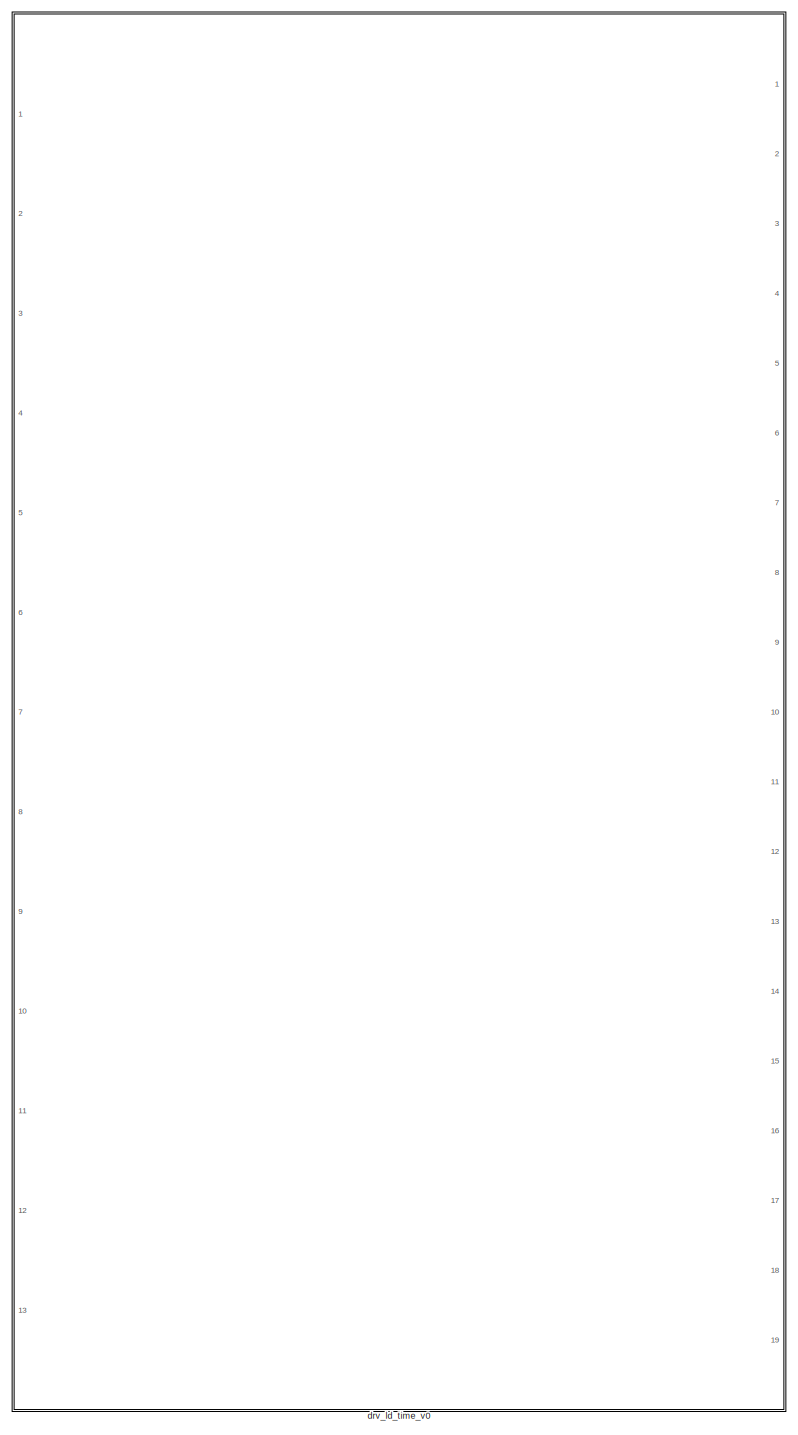
[diagram: root canvas - part 1/1, most of the canvas]
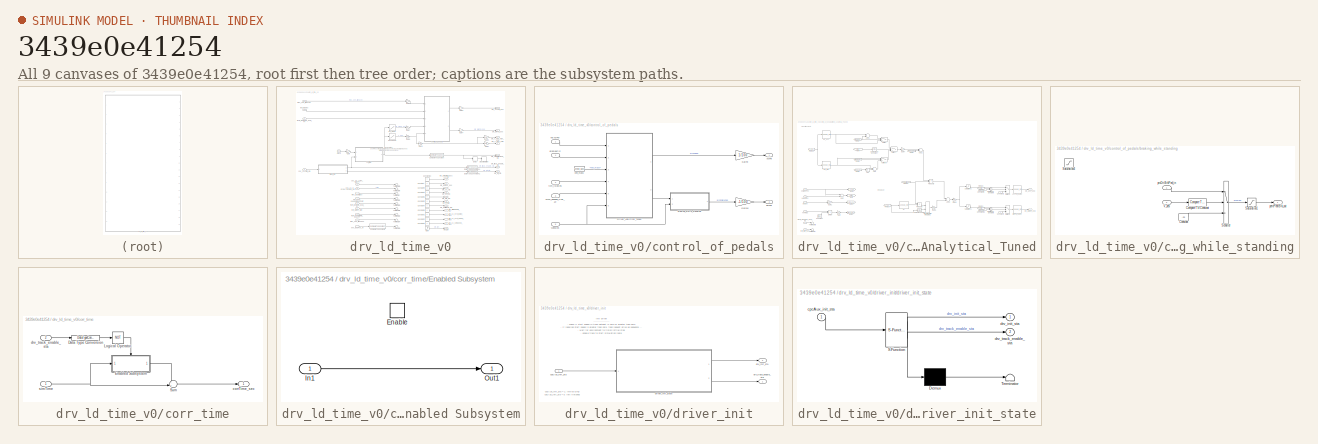
[diagram: thumbnail index - all 9 canvases of the model, root first then tree order]
MODEL slx_3439e0e41254
KIND library
CONFIG AbsTol = auto
CONFIG FixedStep = auto
CONFIG MaxStep = auto
CONFIG MinStep = auto
CONFIG RelTol = 1e-3
CONFIG SampleTimeConstraint = Unconstrained
CONFIG Solver = ode45
CONFIG SolverMode = Auto
CONFIG SolverName = ode45
CONFIG StartTime = 0.0
CONFIG StopTime = 10.0
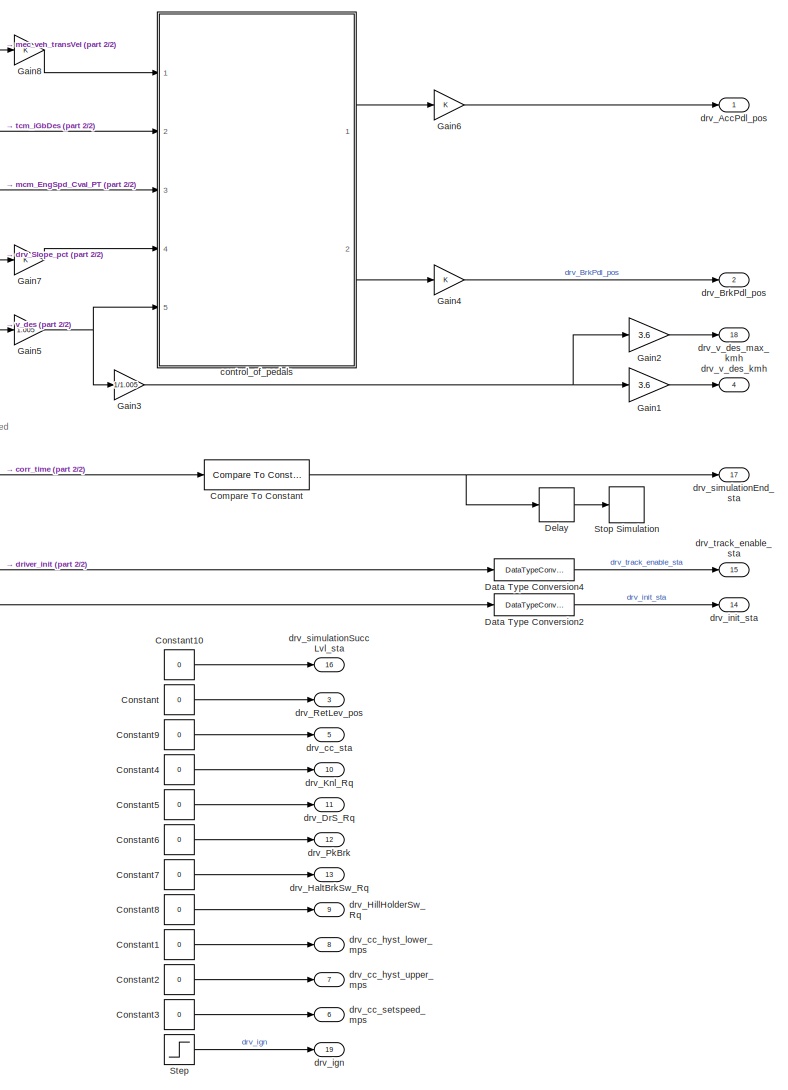
[diagram: drv_ld_time_v0 - part 1/2, right side, full height]
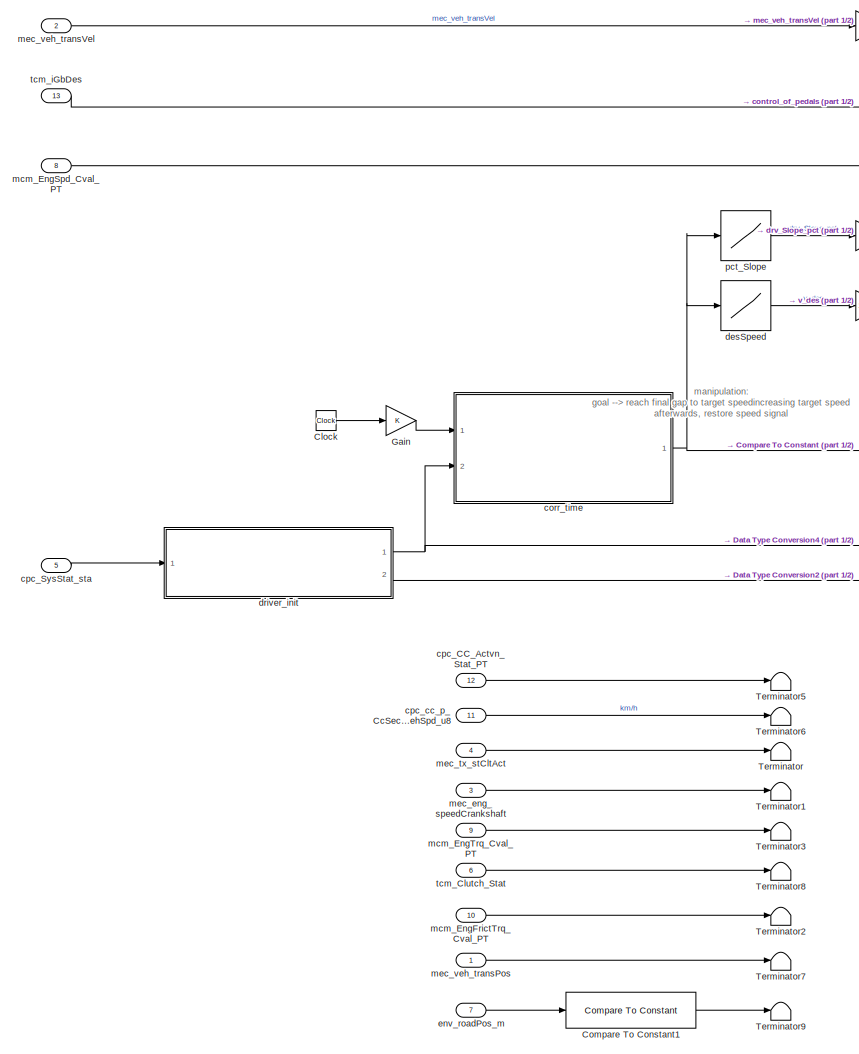
[diagram: drv_ld_time_v0 - part 2/2, left side, full height]
BLOCK [SubSystem] drv_ld_time_v0
  Ports = [13, 19]
  RequestExecContextInheritance = off
  TreatAsAtomicUnit = on
  Variant = off
BLOCK [Clock] drv_ld_time_v0/Clock
BLOCK [Reference] drv_ld_time_v0/Compare To Constant  REF=simulink/Logic and Bit
Operations/Compare
To Constant
  Ports = [1, 1]
  SourceBlock = simulink/Logic and Bit\nOperations/Compare\nTo Constant
  SourceType = Compare To Constant
BLOCK [Reference] drv_ld_time_v0/Compare To Constant1  REF=simulink/Logic and Bit
Operations/Compare
To Constant
  Ports = [1, 1]
  SourceBlock = simulink/Logic and Bit\nOperations/Compare\nTo Constant
  SourceType = Compare To Constant
BLOCK [Constant] drv_ld_time_v0/Constant
  Value = 0
BLOCK [Constant] drv_ld_time_v0/Constant1
  Value = 0
BLOCK [Constant] drv_ld_time_v0/Constant10
  Value = 0
BLOCK [Constant] drv_ld_time_v0/Constant2
  Value = 0
BLOCK [Constant] drv_ld_time_v0/Constant3
  Value = 0
BLOCK [Constant] drv_ld_time_v0/Constant4
  Value = 0
BLOCK [Constant] drv_ld_time_v0/Constant5
  Value = 0
BLOCK [Constant] drv_ld_time_v0/Constant6
  Value = 0
BLOCK [Constant] drv_ld_time_v0/Constant7
  Value = 0
BLOCK [Constant] drv_ld_time_v0/Constant8
  Value = 0
BLOCK [Constant] drv_ld_time_v0/Constant9
  Value = 0
BLOCK [DataTypeConversion] drv_ld_time_v0/Data Type Conversion2
  OutDataTypeStr = double
  RndMeth = Floor
  SaturateOnIntegerOverflow = off
BLOCK [DataTypeConversion] drv_ld_time_v0/Data Type Conversion4
  OutDataTypeStr = double
  RndMeth = Floor
  SaturateOnIntegerOverflow = off
BLOCK [Delay] drv_ld_time_v0/Delay
  DelayLength = sMP.human.drv.stopDelay
  InitialCondition = 0
  InputPortMap = u0
  Ports = [1, 1]
BLOCK [Gain] drv_ld_time_v0/Gain
  OutDataTypeStr = Inherit: Inherit via internal rule
  ParamDataTypeStr = Inherit: Inherit via internal rule
  SampleTime = K
  SaturateOnIntegerOverflow = off
BLOCK [Gain] drv_ld_time_v0/Gain1
  Gain = 3.6
  OutDataTypeStr = Inherit: Inherit via internal rule
  ParamDataTypeStr = Inherit: Inherit via internal rule
  SaturateOnIntegerOverflow = off
BLOCK [Gain] drv_ld_time_v0/Gain2
  Gain = 3.6
  OutDataTypeStr = Inherit: Inherit via internal rule
  ParamDataTypeStr = Inherit: Inherit via internal rule
  SaturateOnIntegerOverflow = off
BLOCK [Gain] drv_ld_time_v0/Gain3
  AttributesFormatString = %<Gain>
  Gain = 1/1.005
  OutDataTypeStr = Inherit: Inherit via internal rule
  ParamDataTypeStr = Inherit: Inherit via internal rule
  SaturateOnIntegerOverflow = off
BLOCK [Gain] drv_ld_time_v0/Gain4
  OutDataTypeStr = Inherit: Inherit via internal rule
  ParamDataTypeStr = Inherit: Inherit via internal rule
  SaturateOnIntegerOverflow = off
BLOCK [Gain] drv_ld_time_v0/Gain5
  AttributesFormatString = %<Gain>
  Gain = 1.005
  OutDataTypeStr = Inherit: Inherit via internal rule
  ParamDataTypeStr = Inherit: Inherit via internal rule
  SaturateOnIntegerOverflow = off
BLOCK [Gain] drv_ld_time_v0/Gain6
  OutDataTypeStr = Inherit: Inherit via internal rule
  ParamDataTypeStr = Inherit: Inherit via internal rule
  SaturateOnIntegerOverflow = off
BLOCK [Gain] drv_ld_time_v0/Gain7
  OutDataTypeStr = Inherit: Inherit via internal rule
  ParamDataTypeStr = Inherit: Inherit via internal rule
  SaturateOnIntegerOverflow = off
BLOCK [Gain] drv_ld_time_v0/Gain8
  OutDataTypeStr = Inherit: Inherit via internal rule
  ParamDataTypeStr = Inherit: Inherit via internal rule
  SaturateOnIntegerOverflow = off
BLOCK [Step] drv_ld_time_v0/Step
  AttributesFormatString = %<Before> >> %<After> after %<Time>s
  SampleTime = 0
  Time = 0.1
BLOCK [Stop] drv_ld_time_v0/Stop Simulation
BLOCK [Terminator] drv_ld_time_v0/Terminator
BLOCK [Terminator] drv_ld_time_v0/Terminator1
BLOCK [Terminator] drv_ld_time_v0/Terminator2
BLOCK [Terminator] drv_ld_time_v0/Terminator3
BLOCK [Terminator] drv_ld_time_v0/Terminator5
BLOCK [Terminator] drv_ld_time_v0/Terminator6
BLOCK [Terminator] drv_ld_time_v0/Terminator7
BLOCK [Terminator] drv_ld_time_v0/Terminator8
BLOCK [Terminator] drv_ld_time_v0/Terminator9
BLOCK [SubSystem] drv_ld_time_v0/control_of_pedals
  Ports = [5, 2]
  RequestExecContextInheritance = off
  Variant = off
BLOCK [Outport] drv_ld_time_v0/control_of_pedals/AccPdl
  IconDisplay = Port number
BLOCK [Outport] drv_ld_time_v0/control_of_pedals/BrkPdl
  IconDisplay = Port number
  Port = 2
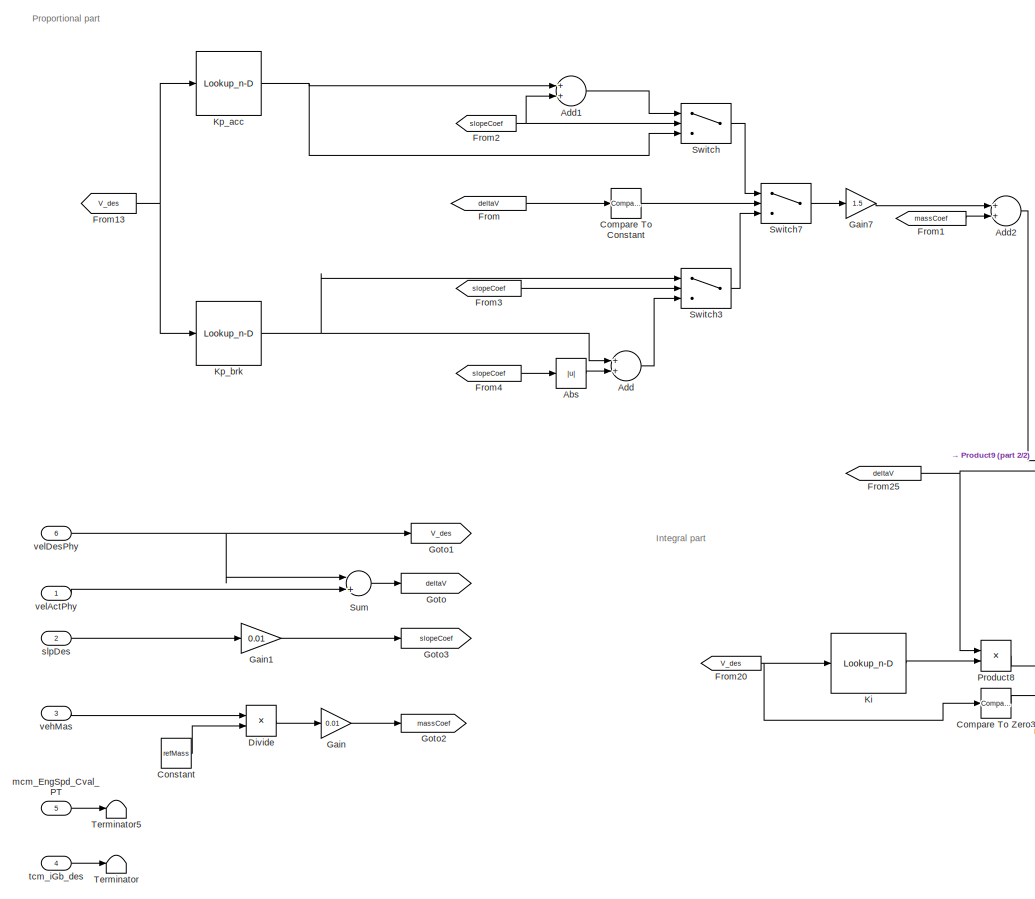
[diagram: drv_ld_time_v0/control_of_pedals/Driver_Analytical_Tuned - part 1/2, left side, full height]
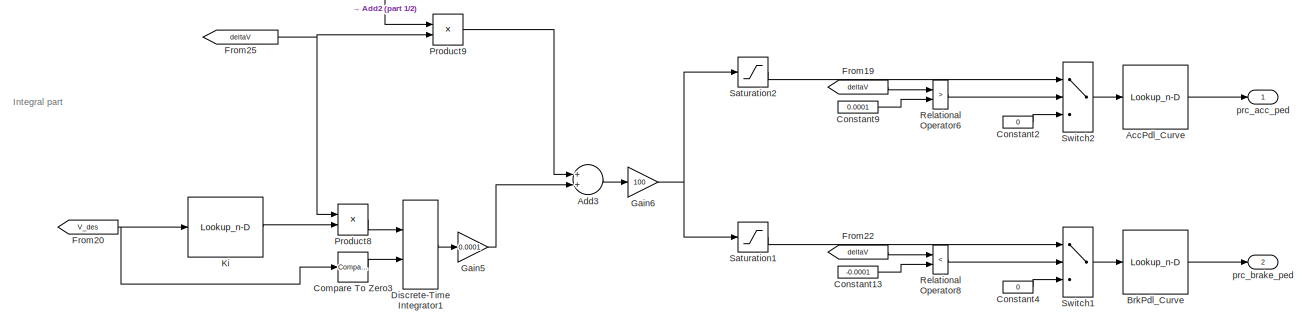
[diagram: drv_ld_time_v0/control_of_pedals/Driver_Analytical_Tuned - part 2/2, bottom center region]
BLOCK [SubSystem] drv_ld_time_v0/control_of_pedals/Driver_Analytical_Tuned
  Ports = [6, 2]
  RequestExecContextInheritance = off
  Variant = off
BLOCK [Abs] drv_ld_time_v0/control_of_pedals/Driver_Analytical_Tuned/Abs
  SaturateOnIntegerOverflow = off
BLOCK [Lookup_n-D] drv_ld_time_v0/control_of_pedals/Driver_Analytical_Tuned/AccPdl_Curve
  BreakpointsForDimension1 = vehPara_AccPdlCurve(:,1)
  InternalRulePriority = Speed
  NumberOfTableDimensions = 1
  Ports = [1, 1]
  RndMeth = Simplest
  Table = vehPara_AccPdlCurve(:,2)
BLOCK [Sum] drv_ld_time_v0/control_of_pedals/Driver_Analytical_Tuned/Add
  InputSameDT = off
  OutDataTypeStr = Inherit: Inherit via internal rule
  Ports = [2, 1]
  SaturateOnIntegerOverflow = off
BLOCK [Sum] drv_ld_time_v0/control_of_pedals/Driver_Analytical_Tuned/Add1
  InputSameDT = off
  OutDataTypeStr = Inherit: Inherit via internal rule
  Ports = [2, 1]
  SaturateOnIntegerOverflow = off
BLOCK [Sum] drv_ld_time_v0/control_of_pedals/Driver_Analytical_Tuned/Add2
  InputSameDT = off
  OutDataTypeStr = Inherit: Inherit via internal rule
  Ports = [2, 1]
  SaturateOnIntegerOverflow = off
BLOCK [Sum] drv_ld_time_v0/control_of_pedals/Driver_Analytical_Tuned/Add3
  InputSameDT = off
  OutDataTypeStr = Inherit: Inherit via internal rule
  Ports = [2, 1]
  SaturateOnIntegerOverflow = off
BLOCK [Lookup_n-D] drv_ld_time_v0/control_of_pedals/Driver_Analytical_Tuned/BrkPdl_Curve
  BreakpointsForDimension1 = vehPara_BrkPdlCurve(:,1)
  InternalRulePriority = Speed
  NumberOfTableDimensions = 1
  Ports = [1, 1]
  RndMeth = Simplest
  Table = vehPara_BrkPdlCurve(:,2)
BLOCK [Reference] drv_ld_time_v0/control_of_pedals/Driver_Analytical_Tuned/Compare To Constant  REF=simulink/Logic and Bit
Operations/Compare
To Constant
  Ports = [1, 1]
  SourceBlock = simulink/Logic and Bit\nOperations/Compare\nTo Constant
  SourceType = Compare To Constant
BLOCK [Reference] drv_ld_time_v0/control_of_pedals/Driver_Analytical_Tuned/Compare To Zero3  REF=simulink/Logic and Bit
Operations/Compare
To Zero
  Ports = [1, 1]
  SourceBlock = simulink/Logic and Bit\nOperations/Compare\nTo Zero
  SourceType = Compare To Zero
BLOCK [Constant] drv_ld_time_v0/control_of_pedals/Driver_Analytical_Tuned/Constant
  AttributesFormatString = %<Value>
  Value = refMass
BLOCK [Constant] drv_ld_time_v0/control_of_pedals/Driver_Analytical_Tuned/Constant13
  Value = -0.0001
BLOCK [Constant] drv_ld_time_v0/control_of_pedals/Driver_Analytical_Tuned/Constant2
  Value = 0
BLOCK [Constant] drv_ld_time_v0/control_of_pedals/Driver_Analytical_Tuned/Constant4
  Value = 0
BLOCK [Constant] drv_ld_time_v0/control_of_pedals/Driver_Analytical_Tuned/Constant9
  Value = 0.0001
BLOCK [DiscreteIntegrator] drv_ld_time_v0/control_of_pedals/Driver_Analytical_Tuned/Discrete-Time Integrator1
  ExternalReset = level
  ICPrevOutput = DiscIntNeverNeededParam
  ICPrevScaledInput = DiscIntNeverNeededParam
  LimitOutput = on
  LowerSaturationLimit = -7500
  Ports = [2, 1]
  SampleTime = -1
  UpperSaturationLimit = 7500
BLOCK [Product] drv_ld_time_v0/control_of_pedals/Driver_Analytical_Tuned/Divide
  InputSameDT = off
  Inputs = */
  OutDataTypeStr = Inherit: Inherit via internal rule
  Ports = [2, 1]
  RndMeth = Floor
  SaturateOnIntegerOverflow = off
BLOCK [From] drv_ld_time_v0/control_of_pedals/Driver_Analytical_Tuned/From
  GotoTag = deltaV
BLOCK [From] drv_ld_time_v0/control_of_pedals/Driver_Analytical_Tuned/From1
  GotoTag = massCoef
BLOCK [From] drv_ld_time_v0/control_of_pedals/Driver_Analytical_Tuned/From13
  GotoTag = V_des
BLOCK [From] drv_ld_time_v0/control_of_pedals/Driver_Analytical_Tuned/From19
  GotoTag = deltaV
BLOCK [From] drv_ld_time_v0/control_of_pedals/Driver_Analytical_Tuned/From2
  GotoTag = slopeCoef
BLOCK [From] drv_ld_time_v0/control_of_pedals/Driver_Analytical_Tuned/From20
  GotoTag = V_des
BLOCK [From] drv_ld_time_v0/control_of_pedals/Driver_Analytical_Tuned/From22
  GotoTag = deltaV
BLOCK [From] drv_ld_time_v0/control_of_pedals/Driver_Analytical_Tuned/From25
  GotoTag = deltaV
BLOCK [From] drv_ld_time_v0/control_of_pedals/Driver_Analytical_Tuned/From3
  GotoTag = slopeCoef
BLOCK [From] drv_ld_time_v0/control_of_pedals/Driver_Analytical_Tuned/From4
  GotoTag = slopeCoef
BLOCK [Gain] drv_ld_time_v0/control_of_pedals/Driver_Analytical_Tuned/Gain
  AttributesFormatString = %<Gain>
  Gain = 0.01
  OutDataTypeStr = Inherit: Inherit via internal rule
  ParamDataTypeStr = Inherit: Inherit via internal rule
  SaturateOnIntegerOverflow = off
BLOCK [Gain] drv_ld_time_v0/control_of_pedals/Driver_Analytical_Tuned/Gain1
  Gain = 0.01
  OutDataTypeStr = Inherit: Inherit via internal rule
  ParamDataTypeStr = Inherit: Inherit via internal rule
  SaturateOnIntegerOverflow = off
BLOCK [Gain] drv_ld_time_v0/control_of_pedals/Driver_Analytical_Tuned/Gain5
  AttributesFormatString = %<Gain>
  Gain = 0.0001
  OutDataTypeStr = Inherit: Inherit via internal rule
  ParamDataTypeStr = Inherit: Inherit via internal rule
  SaturateOnIntegerOverflow = off
BLOCK [Gain] drv_ld_time_v0/control_of_pedals/Driver_Analytical_Tuned/Gain6
  Gain = 100
  OutDataTypeStr = Inherit: Inherit via internal rule
  ParamDataTypeStr = Inherit: Inherit via internal rule
  SaturateOnIntegerOverflow = off
BLOCK [Gain] drv_ld_time_v0/control_of_pedals/Driver_Analytical_Tuned/Gain7
  AttributesFormatString = %<Gain>
  Gain = 1.5
  OutDataTypeStr = Inherit: Inherit via internal rule
  ParamDataTypeStr = Inherit: Inherit via internal rule
  SaturateOnIntegerOverflow = off
BLOCK [Goto] drv_ld_time_v0/control_of_pedals/Driver_Analytical_Tuned/Goto
  GotoTag = deltaV
BLOCK [Goto] drv_ld_time_v0/control_of_pedals/Driver_Analytical_Tuned/Goto1
  GotoTag = V_des
BLOCK [Goto] drv_ld_time_v0/control_of_pedals/Driver_Analytical_Tuned/Goto2
  GotoTag = massCoef
BLOCK [Goto] drv_ld_time_v0/control_of_pedals/Driver_Analytical_Tuned/Goto3
  GotoTag = slopeCoef
BLOCK [Lookup_n-D] drv_ld_time_v0/control_of_pedals/Driver_Analytical_Tuned/Ki
  BreakpointsForDimension1 = [0,10,20,30,40,50,60,70,80]
  BreakpointsForDimension2 = Veh_Speed_Breaking
  NumberOfTableDimensions = 1
  Ports = [1, 1]
  RndMeth = Simplest
  Table = [0.01,0.015,0.02,0.0225,0.03,0.035,0.04,0.045,0.05]
BLOCK [Lookup_n-D] drv_ld_time_v0/control_of_pedals/Driver_Analytical_Tuned/Kp_acc
  BreakpointsForDimension1 = Kp_acc(2,:)
  BreakpointsForDimension2 = Veh_Speed_Breaking
  NumberOfTableDimensions = 1
  Ports = [1, 1]
  RndMeth = Simplest
  Table = Kp_acc(1,:)
BLOCK [Lookup_n-D] drv_ld_time_v0/control_of_pedals/Driver_Analytical_Tuned/Kp_brk
  BreakpointsForDimension1 = [0,10,20,30,40,50,60,70,80,90,100]
  BreakpointsForDimension2 = Veh_Speed_Breaking
  NumberOfTableDimensions = 1
  Ports = [1, 1]
  RndMeth = Simplest
  Table = [1,1.25,1.25,1.5,1.5,1.5,1.7,1.8,1.8,1.8,2]*0.1
BLOCK [Product] drv_ld_time_v0/control_of_pedals/Driver_Analytical_Tuned/Product8
  InputSameDT = off
  OutDataTypeStr = Inherit: Inherit via internal rule
  Ports = [2, 1]
  RndMeth = Floor
  SaturateOnIntegerOverflow = off
BLOCK [Product] drv_ld_time_v0/control_of_pedals/Driver_Analytical_Tuned/Product9
  InputSameDT = off
  OutDataTypeStr = Inherit: Inherit via internal rule
  Ports = [2, 1]
  RndMeth = Floor
  SaturateOnIntegerOverflow = off
BLOCK [RelationalOperator] drv_ld_time_v0/control_of_pedals/Driver_Analytical_Tuned/Relational Operator6
  InputSameDT = off
  Operator = >
  OutDataTypeStr = uint(8)
  Ports = [2, 1]
BLOCK [RelationalOperator] drv_ld_time_v0/control_of_pedals/Driver_Analytical_Tuned/Relational Operator8
  InputSameDT = off
  Operator = <
  OutDataTypeStr = uint(8)
  Ports = [2, 1]
BLOCK [Saturate] drv_ld_time_v0/control_of_pedals/Driver_Analytical_Tuned/Saturation1
  AttributesFormatString = %<UpperLimit>\n%<LowerLimit>
  InputPortMap = u0
  LowerLimit = -100
  Ports = [1, 1]
  UpperLimit = 0
BLOCK [Saturate] drv_ld_time_v0/control_of_pedals/Driver_Analytical_Tuned/Saturation2
  AttributesFormatString = %<UpperLimit>\n%<LowerLimit>
  InputPortMap = u0
  LowerLimit = 0
  Ports = [1, 1]
  UpperLimit = 100
BLOCK [Sum] drv_ld_time_v0/control_of_pedals/Driver_Analytical_Tuned/Sum
  InputSameDT = off
  Inputs = |+-
  OutDataTypeStr = Inherit: Inherit via internal rule
  Ports = [2, 1]
  SaturateOnIntegerOverflow = off
BLOCK [Switch] drv_ld_time_v0/control_of_pedals/Driver_Analytical_Tuned/Switch
  Criteria = u2 > Threshold
  InputSameDT = off
  SaturateOnIntegerOverflow = off
BLOCK [Switch] drv_ld_time_v0/control_of_pedals/Driver_Analytical_Tuned/Switch1
  InputSameDT = off
  SaturateOnIntegerOverflow = off
  Threshold = 0.5
BLOCK [Switch] drv_ld_time_v0/control_of_pedals/Driver_Analytical_Tuned/Switch2
  InputSameDT = off
  SaturateOnIntegerOverflow = off
  Threshold = 0.5
BLOCK [Switch] drv_ld_time_v0/control_of_pedals/Driver_Analytical_Tuned/Switch3
  Criteria = u2 > Threshold
  InputSameDT = off
  SaturateOnIntegerOverflow = off
BLOCK [Switch] drv_ld_time_v0/control_of_pedals/Driver_Analytical_Tuned/Switch7
  InputSameDT = off
  SaturateOnIntegerOverflow = off
BLOCK [Terminator] drv_ld_time_v0/control_of_pedals/Driver_Analytical_Tuned/Terminator
BLOCK [Terminator] drv_ld_time_v0/control_of_pedals/Driver_Analytical_Tuned/Terminator5
BLOCK [Inport] drv_ld_time_v0/control_of_pedals/Driver_Analytical_Tuned/mcm_EngSpd_Cval_PT
  IconDisplay = Port number
  Port = 5
BLOCK [Outport] drv_ld_time_v0/control_of_pedals/Driver_Analytical_Tuned/prc_acc_ped
  IconDisplay = Port number
BLOCK [Outport] drv_ld_time_v0/control_of_pedals/Driver_Analytical_Tuned/prc_brake_ped
  IconDisplay = Port number
  Port = 2
BLOCK [Inport] drv_ld_time_v0/control_of_pedals/Driver_Analytical_Tuned/slpDes
  IconDisplay = Port number
  Port = 2
BLOCK [Inport] drv_ld_time_v0/control_of_pedals/Driver_Analytical_Tuned/tcm_iGb_des
  IconDisplay = Port number
  Port = 4
BLOCK [Inport] drv_ld_time_v0/control_of_pedals/Driver_Analytical_Tuned/vehMas
  IconDisplay = Port number
  Port = 3
BLOCK [Inport] drv_ld_time_v0/control_of_pedals/Driver_Analytical_Tuned/velActPhy
  IconDisplay = Port number
BLOCK [Inport] drv_ld_time_v0/control_of_pedals/Driver_Analytical_Tuned/velDesPhy
  IconDisplay = Port number
  Port = 6
BLOCK [Gain] drv_ld_time_v0/control_of_pedals/Gain10
  Gain = -1/100
  OutDataTypeStr = Inherit: Inherit via internal rule
  ParamDataTypeStr = Inherit: Inherit via internal rule
  SaturateOnIntegerOverflow = off
BLOCK [Gain] drv_ld_time_v0/control_of_pedals/Gain9
  Gain = 1/100
  OutDataTypeStr = Inherit: Inherit via internal rule
  ParamDataTypeStr = Inherit: Inherit via internal rule
  SaturateOnIntegerOverflow = off
BLOCK [SubSystem] drv_ld_time_v0/control_of_pedals/braking_while_standing
  Ports = [2, 1]
  RequestExecContextInheritance = off
  ShowPortLabels = FromPortBlockName
  Variant = off
BLOCK [Reference] drv_ld_time_v0/control_of_pedals/braking_while_standing/Compare To Constant  REF=simulink/Logic and Bit
Operations/Compare
To Constant
  Ports = [1, 1]
  SourceBlock = simulink/Logic and Bit\nOperations/Compare\nTo Constant
  SourceType = Compare To Constant
BLOCK [Constant] drv_ld_time_v0/control_of_pedals/braking_while_standing/Constant
  AttributesFormatString = %<Value>
  Value = -25
BLOCK [Saturate] drv_ld_time_v0/control_of_pedals/braking_while_standing/Saturation1
  AttributesFormatString = %<UpperLimit>\n%<LowerLimit>
  InputPortMap = u0
  LowerLimit = -100
  Ports = [1, 1]
  UpperLimit = 0
BLOCK [Saturate] drv_ld_time_v0/control_of_pedals/braking_while_standing/Saturation3
  AttributesFormatString = %<UpperLimit>\n%<LowerLimit>
  InputPortMap = u0
  LowerLimit = -100
  Ports = [1, 1]
  UpperLimit = 0
BLOCK [Switch] drv_ld_time_v0/control_of_pedals/braking_while_standing/Schalter
  AttributesFormatString = %<Criteria>(%<Threshold>)
  InputSameDT = off
  Threshold = 0.5
BLOCK [Inport] drv_ld_time_v0/control_of_pedals/braking_while_standing/V_des
  IconDisplay = Port number
  Port = 2
BLOCK [Outport] drv_ld_time_v0/control_of_pedals/braking_while_standing/percPedlBrk_out
  AttributesFormatString = %<Description>
  Description = [%]
  IconDisplay = Port number
BLOCK [Inport] drv_ld_time_v0/control_of_pedals/braking_while_standing/prcDriBrkPed_in
  IconDisplay = Port number
BLOCK [Inport] drv_ld_time_v0/control_of_pedals/grdSlopCyc
  IconDisplay = Port number
  Port = 4
BLOCK [Inport] drv_ld_time_v0/control_of_pedals/mcm_EngSpd_Cval_PT
  IconDisplay = Port number
  Port = 3
BLOCK [Inport] drv_ld_time_v0/control_of_pedals/tcm_iGbDes
  IconDisplay = Port number
  Port = 2
BLOCK [Inport] drv_ld_time_v0/control_of_pedals/vVesDes
  IconDisplay = Port number
  Port = 5
BLOCK [Constant] drv_ld_time_v0/control_of_pedals/veh_mass
  Value = Vehicle_Mass
BLOCK [Inport] drv_ld_time_v0/control_of_pedals/velActPhy
  IconDisplay = Port number
BLOCK [SubSystem] drv_ld_time_v0/corr_time
  Ports = [2, 1]
  RequestExecContextInheritance = off
  Variant = off
BLOCK [DataTypeConversion] drv_ld_time_v0/corr_time/Data Type Conversion
  OutDataTypeStr = boolean
  RndMeth = Floor
  SaturateOnIntegerOverflow = off
BLOCK [SubSystem] drv_ld_time_v0/corr_time/Enabled Subsystem
  Ports = [1, 1, 1]
  RequestExecContextInheritance = off
  TreatAsAtomicUnit = on
  Variant = off
BLOCK [EnablePort] drv_ld_time_v0/corr_time/Enabled Subsystem/Enable
  Ports = []
BLOCK [Inport] drv_ld_time_v0/corr_time/Enabled Subsystem/In1
  IconDisplay = Port number
BLOCK [Outport] drv_ld_time_v0/corr_time/Enabled Subsystem/Out1
  IconDisplay = Port number
BLOCK [Logic] drv_ld_time_v0/corr_time/Logical Operator
  AllPortsSameDT = off
  Operator = NOT
  OutDataTypeStr = boolean
  Ports = [1, 1]
BLOCK [Sum] drv_ld_time_v0/corr_time/Sum
  IconShape = round
  InputSameDT = off
  Inputs = -+|
  OutDataTypeStr = Inherit: Inherit via internal rule
  Ports = [2, 1]
  SaturateOnIntegerOverflow = off
BLOCK [Outport] drv_ld_time_v0/corr_time/corrTime_sec
  IconDisplay = Port number
BLOCK [Inport] drv_ld_time_v0/corr_time/drv_track_enable_sta
  IconDisplay = Port number
  Port = 2
BLOCK [Inport] drv_ld_time_v0/corr_time/simTime
  IconDisplay = Port number
BLOCK [Inport] drv_ld_time_v0/cpc_CC_Actvn_Stat_PT
  IconDisplay = Port number
  Port = 12
BLOCK [Inport] drv_ld_time_v0/cpc_SysStat_sta
  IconDisplay = Port number
  Port = 5
BLOCK [Inport] drv_ld_time_v0/cpc_cc_p_CcSecure_LowSwitchOnVehSpd_u8
  IconDisplay = Port number
  Port = 11
BLOCK [Lookup] drv_ld_time_v0/desSpeed
  InputValues = CYC.t
  SaturateOnIntegerOverflow = off
  Table = CYC.v
BLOCK [SubSystem] drv_ld_time_v0/driver_init
  Ports = [1, 2]
  RequestExecContextInheritance = off
  Variant = off
BLOCK [Inport] drv_ld_time_v0/driver_init/cpcAux_init_sta
  IconDisplay = Port number
BLOCK [SubSystem] drv_ld_time_v0/driver_init/driver_init_state
  ErrorFcn = Stateflow.Translate.translate
  PermitHierarchicalResolution = ExplicitOnly
  Ports = [1, 2]
  RequestExecContextInheritance = off
  SFBlockType = Chart
  TreatAsAtomicUnit = on
  Variant = off
BLOCK [Demux] drv_ld_time_v0/driver_init/driver_init_state/ Demux 
  Outputs = 1
  Ports = [1, 1]
BLOCK [S-Function] drv_ld_time_v0/driver_init/driver_init_state/ SFunction 
  EnableBusSupport = off
  FunctionName = sf_sfun
  PortCounts = [1 3]
  Ports = [1, 3]
  SFunctionDeploymentMode = off
  Tag = Stateflow S-Function drv_ld_time_v0 1
BLOCK [Terminator] drv_ld_time_v0/driver_init/driver_init_state/ Terminator 
BLOCK [Inport] drv_ld_time_v0/driver_init/driver_init_state/cpcAux_init_sta
  IconDisplay = Port number
BLOCK [Outport] drv_ld_time_v0/driver_init/driver_init_state/drv_init_sta
  IconDisplay = Port number
BLOCK [Outport] drv_ld_time_v0/driver_init/driver_init_state/drv_track_enable_sta
  IconDisplay = Port number
  Port = 2
BLOCK [Outport] drv_ld_time_v0/driver_init/drv_init_sta
  IconDisplay = Port number
  Port = 2
BLOCK [Outport] drv_ld_time_v0/driver_init/drv_track_enable_sta
  IconDisplay = Port number
BLOCK [Outport] drv_ld_time_v0/drv_AccPdl_pos
  IconDisplay = Port number
BLOCK [Outport] drv_ld_time_v0/drv_BrkPdl_pos
  IconDisplay = Port number
  Port = 2
BLOCK [Outport] drv_ld_time_v0/drv_DrS_Rq
  IconDisplay = Port number
  Port = 11
BLOCK [Outport] drv_ld_time_v0/drv_HaltBrkSw_Rq
  IconDisplay = Port number
  Port = 13
BLOCK [Outport] drv_ld_time_v0/drv_HillHolderSw_Rq
  IconDisplay = Port number
  Port = 9
BLOCK [Outport] drv_ld_time_v0/drv_Knl_Rq
  IconDisplay = Port number
  Port = 10
BLOCK [Outport] drv_ld_time_v0/drv_PkBrk
  IconDisplay = Port number
  Port = 12
BLOCK [Outport] drv_ld_time_v0/drv_RetLev_pos
  IconDisplay = Port number
  Port = 3
BLOCK [Outport] drv_ld_time_v0/drv_cc_hyst_lower_mps
  IconDisplay = Port number
  Port = 8
BLOCK [Outport] drv_ld_time_v0/drv_cc_hyst_upper_mps
  IconDisplay = Port number
  Port = 7
BLOCK [Outport] drv_ld_time_v0/drv_cc_setspeed_mps
  IconDisplay = Port number
  Port = 6
BLOCK [Outport] drv_ld_time_v0/drv_cc_sta
  IconDisplay = Port number
  Port = 5
BLOCK [Outport] drv_ld_time_v0/drv_ign
  IconDisplay = Port number
  Port = 19
BLOCK [Outport] drv_ld_time_v0/drv_init_sta
  IconDisplay = Port number
  Port = 14
BLOCK [Outport] drv_ld_time_v0/drv_simulationEnd_sta
  IconDisplay = Port number
  Port = 17
BLOCK [Outport] drv_ld_time_v0/drv_simulationSuccLvl_sta
  IconDisplay = Port number
  Port = 16
BLOCK [Outport] drv_ld_time_v0/drv_track_enable_sta
  IconDisplay = Port number
  Port = 15
BLOCK [Outport] drv_ld_time_v0/drv_v_des_kmh
  IconDisplay = Port number
  Port = 4
BLOCK [Outport] drv_ld_time_v0/drv_v_des_max_kmh
  IconDisplay = Port number
  Port = 18
BLOCK [Inport] drv_ld_time_v0/env_roadPos_m
  IconDisplay = Port number
  Port = 7
BLOCK [Inport] drv_ld_time_v0/mcm_EngFrictTrq_Cval_PT
  IconDisplay = Port number
  Port = 10
BLOCK [Inport] drv_ld_time_v0/mcm_EngSpd_Cval_PT
  IconDisplay = Port number
  Port = 8
BLOCK [Inport] drv_ld_time_v0/mcm_EngTrq_Cval_PT
  IconDisplay = Port number
  Port = 9
BLOCK [Inport] drv_ld_time_v0/mec_eng_speedCrankshaft
  IconDisplay = Port number
  Port = 3
BLOCK [Inport] drv_ld_time_v0/mec_tx_stCltAct
  IconDisplay = Port number
  Port = 4
BLOCK [Inport] drv_ld_time_v0/mec_veh_transPos
  IconDisplay = Port number
BLOCK [Inport] drv_ld_time_v0/mec_veh_transVel
  IconDisplay = Port number
  Port = 2
BLOCK [Lookup] drv_ld_time_v0/pct_Slope
  InputValues = CYC.t
  SaturateOnIntegerOverflow = off
  Table = CYC.grade
BLOCK [Inport] drv_ld_time_v0/tcm_Clutch_Stat
  IconDisplay = Port number
  Port = 6
BLOCK [Inport] drv_ld_time_v0/tcm_iGbDes
  IconDisplay = Port number
  Port = 13
ANNOTATION drv_ld_time_v0: manipulation: goal --> reach final gap to target speedincreasing target speed afterwards, restore speed signal
ANNOTATION drv_ld_time_v0/control_of_pedals/Driver_Analytical_Tuned: Integral part
ANNOTATION drv_ld_time_v0/control_of_pedals/Driver_Analytical_Tuned: Proportional part
ANNOTATION drv_ld_time_v0/driver_init: cpcAux_init_sta = 1: initializing cpcAux_init_sta = 0: init finished
ANNOTATION drv_ld_time_v0/driver_init: init driver ---------------- - check if start speed in track dataset is zero or greater than zero - if required start speed is greater than zero, then request drive up sequence from pedal manipulation - wait for environment to finish initializing - enable track to start simulation route
LINE drv_ld_time_v0/Clock:1 -> drv_ld_time_v0/Gain:1
LINE drv_ld_time_v0/Compare To Constant1:1 -> drv_ld_time_v0/Terminator9:1
NET drv_ld_time_v0/Compare To Constant:1 -> drv_ld_time_v0/Delay:1, drv_ld_time_v0/drv_simulationEnd_sta:1
LINE drv_ld_time_v0/Constant10:1 -> drv_ld_time_v0/drv_simulationSuccLvl_sta:1
LINE drv_ld_time_v0/Constant1:1 -> drv_ld_time_v0/drv_cc_hyst_lower_mps:1
LINE drv_ld_time_v0/Constant2:1 -> drv_ld_time_v0/drv_cc_hyst_upper_mps:1
LINE drv_ld_time_v0/Constant3:1 -> drv_ld_time_v0/drv_cc_setspeed_mps:1
LINE drv_ld_time_v0/Constant4:1 -> drv_ld_time_v0/drv_Knl_Rq:1
LINE drv_ld_time_v0/Constant5:1 -> drv_ld_time_v0/drv_DrS_Rq:1
LINE drv_ld_time_v0/Constant6:1 -> drv_ld_time_v0/drv_PkBrk:1
LINE drv_ld_time_v0/Constant7:1 -> drv_ld_time_v0/drv_HaltBrkSw_Rq:1
LINE drv_ld_time_v0/Constant8:1 -> drv_ld_time_v0/drv_HillHolderSw_Rq:1
LINE drv_ld_time_v0/Constant9:1 -> drv_ld_time_v0/drv_cc_sta:1
LINE drv_ld_time_v0/Constant:1 -> drv_ld_time_v0/drv_RetLev_pos:1
LINE drv_ld_time_v0/Data Type Conversion2:1 -> drv_ld_time_v0/drv_init_sta:1
LINE drv_ld_time_v0/Data Type Conversion4:1 -> drv_ld_time_v0/drv_track_enable_sta:1
LINE drv_ld_time_v0/Delay:1 -> drv_ld_time_v0/Stop Simulation:1
LINE drv_ld_time_v0/Gain1:1 -> drv_ld_time_v0/drv_v_des_kmh:1
LINE drv_ld_time_v0/Gain2:1 -> drv_ld_time_v0/drv_v_des_max_kmh:1
NET drv_ld_time_v0/Gain3:1 -> drv_ld_time_v0/Gain1:1, drv_ld_time_v0/Gain2:1
LINE drv_ld_time_v0/Gain4:1 -> drv_ld_time_v0/drv_BrkPdl_pos:1
NET drv_ld_time_v0/Gain5:1 -> drv_ld_time_v0/Gain3:1, drv_ld_time_v0/control_of_pedals:5
LINE drv_ld_time_v0/Gain6:1 -> drv_ld_time_v0/drv_AccPdl_pos:1
LINE drv_ld_time_v0/Gain7:1 -> drv_ld_time_v0/control_of_pedals:4
LINE drv_ld_time_v0/Gain8:1 -> drv_ld_time_v0/control_of_pedals:1
LINE drv_ld_time_v0/Gain:1 -> drv_ld_time_v0/corr_time:1
LINE drv_ld_time_v0/Step:1 -> drv_ld_time_v0/drv_ign:1
LINE drv_ld_time_v0/control_of_pedals/Driver_Analytical_Tuned/Abs:1 -> drv_ld_time_v0/control_of_pedals/Driver_Analytical_Tuned/Add:2
LINE drv_ld_time_v0/control_of_pedals/Driver_Analytical_Tuned/AccPdl_Curve:1 -> drv_ld_time_v0/control_of_pedals/Driver_Analytical_Tuned/prc_acc_ped:1
LINE drv_ld_time_v0/control_of_pedals/Driver_Analytical_Tuned/Add1:1 -> drv_ld_time_v0/control_of_pedals/Driver_Analytical_Tuned/Switch:1
LINE drv_ld_time_v0/control_of_pedals/Driver_Analytical_Tuned/Add2:1 -> drv_ld_time_v0/control_of_pedals/Driver_Analytical_Tuned/Product9:1
LINE drv_ld_time_v0/control_of_pedals/Driver_Analytical_Tuned/Add3:1 -> drv_ld_time_v0/control_of_pedals/Driver_Analytical_Tuned/Gain6:1
LINE drv_ld_time_v0/control_of_pedals/Driver_Analytical_Tuned/Add:1 -> drv_ld_time_v0/control_of_pedals/Driver_Analytical_Tuned/Switch3:3
LINE drv_ld_time_v0/control_of_pedals/Driver_Analytical_Tuned/BrkPdl_Curve:1 -> drv_ld_time_v0/control_of_pedals/Driver_Analytical_Tuned/prc_brake_ped:1
LINE drv_ld_time_v0/control_of_pedals/Driver_Analytical_Tuned/Compare To Constant:1 -> drv_ld_time_v0/control_of_pedals/Driver_Analytical_Tuned/Switch7:2
LINE drv_ld_time_v0/control_of_pedals/Driver_Analytical_Tuned/Compare To Zero3:1 -> drv_ld_time_v0/control_of_pedals/Driver_Analytical_Tuned/Discrete-Time Integrator1:2
LINE drv_ld_time_v0/control_of_pedals/Driver_Analytical_Tuned/Constant13:1 -> drv_ld_time_v0/control_of_pedals/Driver_Analytical_Tuned/Relational Operator8:2
LINE drv_ld_time_v0/control_of_pedals/Driver_Analytical_Tuned/Constant2:1 -> drv_ld_time_v0/control_of_pedals/Driver_Analytical_Tuned/Switch2:3
LINE drv_ld_time_v0/control_of_pedals/Driver_Analytical_Tuned/Constant4:1 -> drv_ld_time_v0/control_of_pedals/Driver_Analytical_Tuned/Switch1:3
LINE drv_ld_time_v0/control_of_pedals/Driver_Analytical_Tuned/Constant9:1 -> drv_ld_time_v0/control_of_pedals/Driver_Analytical_Tuned/Relational Operator6:2
LINE drv_ld_time_v0/control_of_pedals/Driver_Analytical_Tuned/Constant:1 -> drv_ld_time_v0/control_of_pedals/Driver_Analytical_Tuned/Divide:2
LINE drv_ld_time_v0/control_of_pedals/Driver_Analytical_Tuned/Discrete-Time Integrator1:1 -> drv_ld_time_v0/control_of_pedals/Driver_Analytical_Tuned/Gain5:1
LINE drv_ld_time_v0/control_of_pedals/Driver_Analytical_Tuned/Divide:1 -> drv_ld_time_v0/control_of_pedals/Driver_Analytical_Tuned/Gain:1
NET drv_ld_time_v0/control_of_pedals/Driver_Analytical_Tuned/From13:1 -> drv_ld_time_v0/control_of_pedals/Driver_Analytical_Tuned/Kp_acc:1, drv_ld_time_v0/control_of_pedals/Driver_Analytical_Tuned/Kp_brk:1
LINE drv_ld_time_v0/control_of_pedals/Driver_Analytical_Tuned/From19:1 -> drv_ld_time_v0/control_of_pedals/Driver_Analytical_Tuned/Relational Operator6:1
LINE drv_ld_time_v0/control_of_pedals/Driver_Analytical_Tuned/From1:1 -> drv_ld_time_v0/control_of_pedals/Driver_Analytical_Tuned/Add2:2
NET drv_ld_time_v0/control_of_pedals/Driver_Analytical_Tuned/From20:1 -> drv_ld_time_v0/control_of_pedals/Driver_Analytical_Tuned/Compare To Zero3:1, drv_ld_time_v0/control_of_pedals/Driver_Analytical_Tuned/Ki:1
LINE drv_ld_time_v0/control_of_pedals/Driver_Analytical_Tuned/From22:1 -> drv_ld_time_v0/control_of_pedals/Driver_Analytical_Tuned/Relational Operator8:1
NET drv_ld_time_v0/control_of_pedals/Driver_Analytical_Tuned/From25:1 -> drv_ld_time_v0/control_of_pedals/Driver_Analytical_Tuned/Product8:1, drv_ld_time_v0/control_of_pedals/Driver_Analytical_Tuned/Product9:2
NET drv_ld_time_v0/control_of_pedals/Driver_Analytical_Tuned/From2:1 -> drv_ld_time_v0/control_of_pedals/Driver_Analytical_Tuned/Add1:2, drv_ld_time_v0/control_of_pedals/Driver_Analytical_Tuned/Switch:2
LINE drv_ld_time_v0/control_of_pedals/Driver_Analytical_Tuned/From3:1 -> drv_ld_time_v0/control_of_pedals/Driver_Analytical_Tuned/Switch3:2
LINE drv_ld_time_v0/control_of_pedals/Driver_Analytical_Tuned/From4:1 -> drv_ld_time_v0/control_of_pedals/Driver_Analytical_Tuned/Abs:1
LINE drv_ld_time_v0/control_of_pedals/Driver_Analytical_Tuned/From:1 -> drv_ld_time_v0/control_of_pedals/Driver_Analytical_Tuned/Compare To Constant:1
LINE drv_ld_time_v0/control_of_pedals/Driver_Analytical_Tuned/Gain1:1 -> drv_ld_time_v0/control_of_pedals/Driver_Analytical_Tuned/Goto3:1
LINE drv_ld_time_v0/control_of_pedals/Driver_Analytical_Tuned/Gain5:1 -> drv_ld_time_v0/control_of_pedals/Driver_Analytical_Tuned/Add3:2
NET drv_ld_time_v0/control_of_pedals/Driver_Analytical_Tuned/Gain6:1 -> drv_ld_time_v0/control_of_pedals/Driver_Analytical_Tuned/Saturation1:1, drv_ld_time_v0/control_of_pedals/Driver_Analytical_Tuned/Saturation2:1
LINE drv_ld_time_v0/control_of_pedals/Driver_Analytical_Tuned/Gain7:1 -> drv_ld_time_v0/control_of_pedals/Driver_Analytical_Tuned/Add2:1
LINE drv_ld_time_v0/control_of_pedals/Driver_Analytical_Tuned/Gain:1 -> drv_ld_time_v0/control_of_pedals/Driver_Analytical_Tuned/Goto2:1
LINE drv_ld_time_v0/control_of_pedals/Driver_Analytical_Tuned/Ki:1 -> drv_ld_time_v0/control_of_pedals/Driver_Analytical_Tuned/Product8:2
NET drv_ld_time_v0/control_of_pedals/Driver_Analytical_Tuned/Kp_acc:1 -> drv_ld_time_v0/control_of_pedals/Driver_Analytical_Tuned/Add1:1, drv_ld_time_v0/control_of_pedals/Driver_Analytical_Tuned/Switch:3
NET drv_ld_time_v0/control_of_pedals/Driver_Analytical_Tuned/Kp_brk:1 -> drv_ld_time_v0/control_of_pedals/Driver_Analytical_Tuned/Add:1, drv_ld_time_v0/control_of_pedals/Driver_Analytical_Tuned/Switch3:1
LINE drv_ld_time_v0/control_of_pedals/Driver_Analytical_Tuned/Product8:1 -> drv_ld_time_v0/control_of_pedals/Driver_Analytical_Tuned/Discrete-Time Integrator1:1
LINE drv_ld_time_v0/control_of_pedals/Driver_Analytical_Tuned/Product9:1 -> drv_ld_time_v0/control_of_pedals/Driver_Analytical_Tuned/Add3:1
LINE drv_ld_time_v0/control_of_pedals/Driver_Analytical_Tuned/Relational Operator6:1 -> drv_ld_time_v0/control_of_pedals/Driver_Analytical_Tuned/Switch2:2
LINE drv_ld_time_v0/control_of_pedals/Driver_Analytical_Tuned/Relational Operator8:1 -> drv_ld_time_v0/control_of_pedals/Driver_Analytical_Tuned/Switch1:2
LINE drv_ld_time_v0/control_of_pedals/Driver_Analytical_Tuned/Saturation1:1 -> drv_ld_time_v0/control_of_pedals/Driver_Analytical_Tuned/Switch1:1
LINE drv_ld_time_v0/control_of_pedals/Driver_Analytical_Tuned/Saturation2:1 -> drv_ld_time_v0/control_of_pedals/Driver_Analytical_Tuned/Switch2:1
LINE drv_ld_time_v0/control_of_pedals/Driver_Analytical_Tuned/Sum:1 -> drv_ld_time_v0/control_of_pedals/Driver_Analytical_Tuned/Goto:1
LINE drv_ld_time_v0/control_of_pedals/Driver_Analytical_Tuned/Switch1:1 -> drv_ld_time_v0/control_of_pedals/Driver_Analytical_Tuned/BrkPdl_Curve:1
LINE drv_ld_time_v0/control_of_pedals/Driver_Analytical_Tuned/Switch2:1 -> drv_ld_time_v0/control_of_pedals/Driver_Analytical_Tuned/AccPdl_Curve:1
LINE drv_ld_time_v0/control_of_pedals/Driver_Analytical_Tuned/Switch3:1 -> drv_ld_time_v0/control_of_pedals/Driver_Analytical_Tuned/Switch7:3
LINE drv_ld_time_v0/control_of_pedals/Driver_Analytical_Tuned/Switch7:1 -> drv_ld_time_v0/control_of_pedals/Driver_Analytical_Tuned/Gain7:1
LINE drv_ld_time_v0/control_of_pedals/Driver_Analytical_Tuned/Switch:1 -> drv_ld_time_v0/control_of_pedals/Driver_Analytical_Tuned/Switch7:1
LINE drv_ld_time_v0/control_of_pedals/Driver_Analytical_Tuned/mcm_EngSpd_Cval_PT:1 -> drv_ld_time_v0/control_of_pedals/Driver_Analytical_Tuned/Terminator5:1
LINE drv_ld_time_v0/control_of_pedals/Driver_Analytical_Tuned/slpDes:1 -> drv_ld_time_v0/control_of_pedals/Driver_Analytical_Tuned/Gain1:1
LINE drv_ld_time_v0/control_of_pedals/Driver_Analytical_Tuned/tcm_iGb_des:1 -> drv_ld_time_v0/control_of_pedals/Driver_Analytical_Tuned/Terminator:1
LINE drv_ld_time_v0/control_of_pedals/Driver_Analytical_Tuned/vehMas:1 -> drv_ld_time_v0/control_of_pedals/Driver_Analytical_Tuned/Divide:1
LINE drv_ld_time_v0/control_of_pedals/Driver_Analytical_Tuned/velActPhy:1 -> drv_ld_time_v0/control_of_pedals/Driver_Analytical_Tuned/Sum:2
NET drv_ld_time_v0/control_of_pedals/Driver_Analytical_Tuned/velDesPhy:1 -> drv_ld_time_v0/control_of_pedals/Driver_Analytical_Tuned/Goto1:1, drv_ld_time_v0/control_of_pedals/Driver_Analytical_Tuned/Sum:1
LINE drv_ld_time_v0/control_of_pedals/Driver_Analytical_Tuned:1 -> drv_ld_time_v0/control_of_pedals/Gain9:1
LINE drv_ld_time_v0/control_of_pedals/Driver_Analytical_Tuned:2 -> drv_ld_time_v0/control_of_pedals/braking_while_standing:1
LINE drv_ld_time_v0/control_of_pedals/Gain10:1 -> drv_ld_time_v0/control_of_pedals/BrkPdl:1
LINE drv_ld_time_v0/control_of_pedals/Gain9:1 -> drv_ld_time_v0/control_of_pedals/AccPdl:1
LINE drv_ld_time_v0/control_of_pedals/braking_while_standing/Compare To Constant:1 -> drv_ld_time_v0/control_of_pedals/braking_while_standing/Schalter:2
LINE drv_ld_time_v0/control_of_pedals/braking_while_standing/Constant:1 -> drv_ld_time_v0/control_of_pedals/braking_while_standing/Schalter:3
LINE drv_ld_time_v0/control_of_pedals/braking_while_standing/Saturation1:1 -> drv_ld_time_v0/control_of_pedals/braking_while_standing/percPedlBrk_out:1
LINE drv_ld_time_v0/control_of_pedals/braking_while_standing/Schalter:1 -> drv_ld_time_v0/control_of_pedals/braking_while_standing/Saturation1:1
LINE drv_ld_time_v0/control_of_pedals/braking_while_standing/V_des:1 -> drv_ld_time_v0/control_of_pedals/braking_while_standing/Compare To Constant:1
LINE drv_ld_time_v0/control_of_pedals/braking_while_standing/prcDriBrkPed_in:1 -> drv_ld_time_v0/control_of_pedals/braking_while_standing/Schalter:1
LINE drv_ld_time_v0/control_of_pedals/braking_while_standing:1 -> drv_ld_time_v0/control_of_pedals/Gain10:1
LINE drv_ld_time_v0/control_of_pedals/grdSlopCyc:1 -> drv_ld_time_v0/control_of_pedals/Driver_Analytical_Tuned:2
LINE drv_ld_time_v0/control_of_pedals/mcm_EngSpd_Cval_PT:1 -> drv_ld_time_v0/control_of_pedals/Driver_Analytical_Tuned:5
LINE drv_ld_time_v0/control_of_pedals/tcm_iGbDes:1 -> drv_ld_time_v0/control_of_pedals/Driver_Analytical_Tuned:4
NET drv_ld_time_v0/control_of_pedals/vVesDes:1 -> drv_ld_time_v0/control_of_pedals/Driver_Analytical_Tuned:6, drv_ld_time_v0/control_of_pedals/braking_while_standing:2
LINE drv_ld_time_v0/control_of_pedals/veh_mass:1 -> drv_ld_time_v0/control_of_pedals/Driver_Analytical_Tuned:3
LINE drv_ld_time_v0/control_of_pedals/velActPhy:1 -> drv_ld_time_v0/control_of_pedals/Driver_Analytical_Tuned:1
LINE drv_ld_time_v0/control_of_pedals:1 -> drv_ld_time_v0/Gain6:1
LINE drv_ld_time_v0/control_of_pedals:2 -> drv_ld_time_v0/Gain4:1
LINE drv_ld_time_v0/corr_time/Data Type Conversion:1 -> drv_ld_time_v0/corr_time/Logical Operator:1
LINE drv_ld_time_v0/corr_time/Enabled Subsystem/In1:1 -> drv_ld_time_v0/corr_time/Enabled Subsystem/Out1:1
LINE drv_ld_time_v0/corr_time/Enabled Subsystem:1 -> drv_ld_time_v0/corr_time/Sum:1
LINE drv_ld_time_v0/corr_time/Logical Operator:1 -> drv_ld_time_v0/corr_time/Enabled Subsystem:enable
LINE drv_ld_time_v0/corr_time/Sum:1 -> drv_ld_time_v0/corr_time/corrTime_sec:1
LINE drv_ld_time_v0/corr_time/drv_track_enable_sta:1 -> drv_ld_time_v0/corr_time/Data Type Conversion:1
NET drv_ld_time_v0/corr_time/simTime:1 -> drv_ld_time_v0/corr_time/Enabled Subsystem:1, drv_ld_time_v0/corr_time/Sum:2
NET drv_ld_time_v0/corr_time:1 -> drv_ld_time_v0/Compare To Constant:1, drv_ld_time_v0/desSpeed:1, drv_ld_time_v0/pct_Slope:1
LINE drv_ld_time_v0/cpc_CC_Actvn_Stat_PT:1 -> drv_ld_time_v0/Terminator5:1
LINE drv_ld_time_v0/cpc_SysStat_sta:1 -> drv_ld_time_v0/driver_init:1
LINE drv_ld_time_v0/cpc_cc_p_CcSecure_LowSwitchOnVehSpd_u8:1 -> drv_ld_time_v0/Terminator6:1
LINE drv_ld_time_v0/desSpeed:1 -> drv_ld_time_v0/Gain5:1
LINE drv_ld_time_v0/driver_init/cpcAux_init_sta:1 -> drv_ld_time_v0/driver_init/driver_init_state:1
LINE drv_ld_time_v0/driver_init/driver_init_state:1 -> drv_ld_time_v0/driver_init/drv_init_sta:1
LINE drv_ld_time_v0/driver_init/driver_init_state:2 -> drv_ld_time_v0/driver_init/drv_track_enable_sta:1
NET drv_ld_time_v0/driver_init:1 -> drv_ld_time_v0/Data Type Conversion4:1, drv_ld_time_v0/corr_time:2
LINE drv_ld_time_v0/driver_init:2 -> drv_ld_time_v0/Data Type Conversion2:1
LINE drv_ld_time_v0/env_roadPos_m:1 -> drv_ld_time_v0/Compare To Constant1:1
LINE drv_ld_time_v0/mcm_EngFrictTrq_Cval_PT:1 -> drv_ld_time_v0/Terminator2:1
LINE drv_ld_time_v0/mcm_EngSpd_Cval_PT:1 -> drv_ld_time_v0/control_of_pedals:3
LINE drv_ld_time_v0/mcm_EngTrq_Cval_PT:1 -> drv_ld_time_v0/Terminator3:1
LINE drv_ld_time_v0/mec_eng_speedCrankshaft:1 -> drv_ld_time_v0/Terminator1:1
LINE drv_ld_time_v0/mec_tx_stCltAct:1 -> drv_ld_time_v0/Terminator:1
LINE drv_ld_time_v0/mec_veh_transPos:1 -> drv_ld_time_v0/Terminator7:1
LINE drv_ld_time_v0/mec_veh_transVel:1 -> drv_ld_time_v0/Gain8:1
LINE drv_ld_time_v0/pct_Slope:1 -> drv_ld_time_v0/Gain7:1
LINE drv_ld_time_v0/tcm_Clutch_Stat:1 -> drv_ld_time_v0/Terminator8:1
LINE drv_ld_time_v0/tcm_iGbDes:1 -> drv_ld_time_v0/control_of_pedals:2
note: NET lines group one-source signal fan-out (src -> all destinations, sorted); 1:1 wires keep LINE
CHART drv_ld_time_v0/driver_init/driver_init_state states=3 transitions=2
  STATE_LABEL 'vehPara_type:\n1: teachIn procedure\n0: w/o teachIn\n\ntbd\n'
  STATE_LABEL 'Init\nen:\ndrv_init_sta = 0;\ndrv_track_enable_sta = 0;\n\n'
  STATE_LABEL 'Final\nen:\ndrv_init_sta = 1;\ndrv_track_enable_sta = 1;\n\ndu: '
